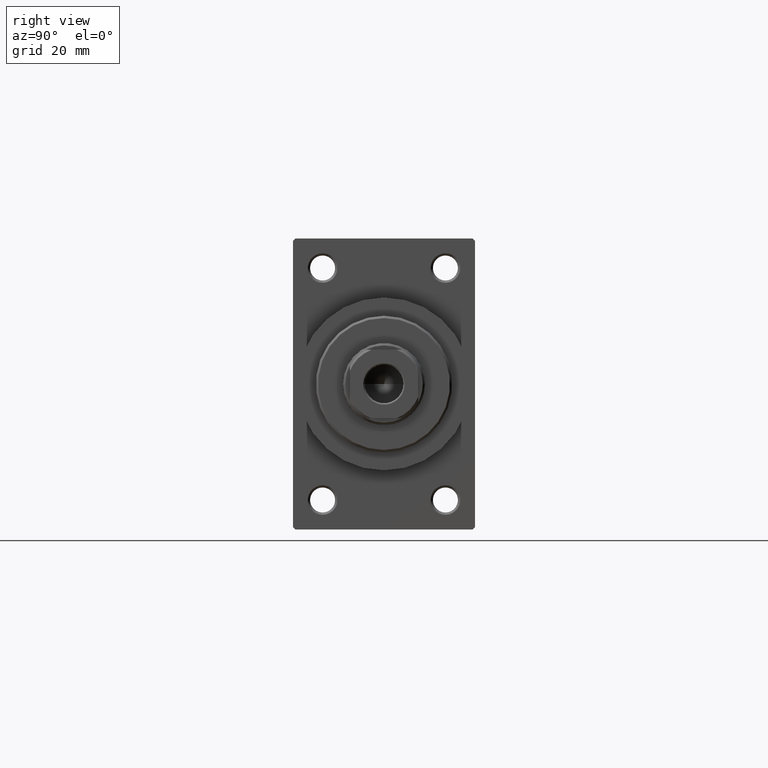
[diagram: clean part render]
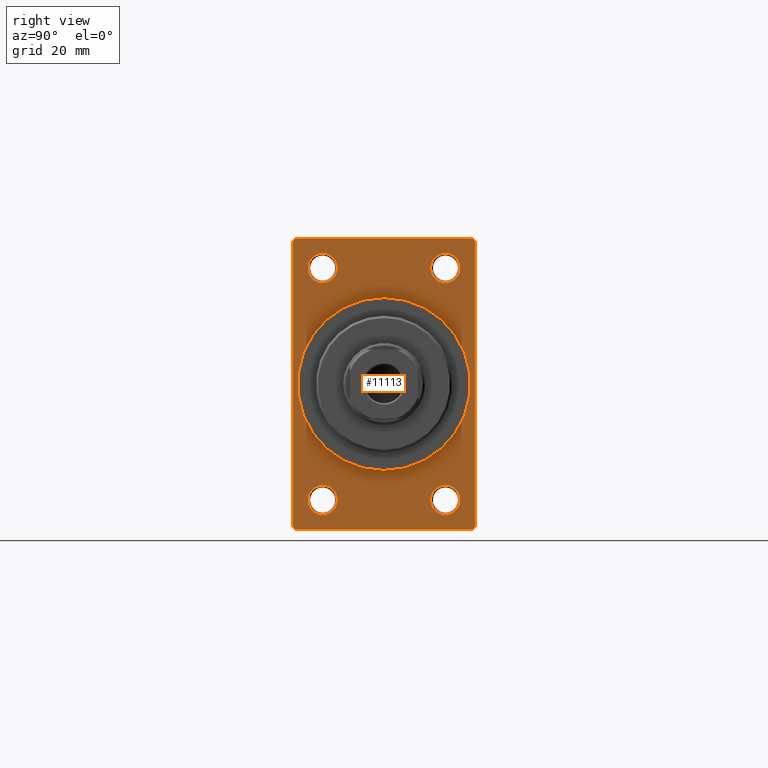
[diagram: same view with one face highlighted and labeled with its STEP entity id]
A machine part, right view. The second image highlights one B-rep face of the part: STEP entity #11113.
In plain terms, the highlighted planar face has unit normal (-1, 0, 0).
Its self-contained STEP definition (entity closure, byte-faithful):
#98 = LINE ( 'NONE', #39566, #30613 ) ;
#538 = VERTEX_POINT ( 'NONE', #13642 ) ;
#969 = CARTESIAN_POINT ( 'NONE',  ( 109.0000000000000142, 13.49999999999999822, -22.24999999999999645 ) ) ;
#1169 = CARTESIAN_POINT ( 'NONE',  ( 109.0000000000000142, 13.49999999999999822, 25.50000000000000355 ) ) ;
#1382 = DIRECTION ( 'NONE',  ( 0.000000000000000000, 0.000000000000000000, -1.000000000000000000 ) ) ;
#1940 = PLANE ( 'NONE',  #20705 ) ;
#2038 = ORIENTED_EDGE ( 'NONE', *, *, #18072, .T. ) ;
#2357 = CARTESIAN_POINT ( 'NONE',  ( 109.0000000000000142, -20.00000000000000000, 31.49999999999997868 ) ) ;
#2371 = VECTOR ( 'NONE', #37365, 1000.000000000000000 ) ;
#2410 = FACE_OUTER_BOUND ( 'NONE', #22496, .T. ) ;
#2972 = DIRECTION ( 'NONE',  ( 0.000000000000000000, -1.000000000000000000, 0.000000000000000000 ) ) ;
#3229 = VERTEX_POINT ( 'NONE', #27696 ) ;
#4065 = EDGE_CURVE ( 'NONE', #8723, #38779, #9492, .T. ) ;
#4791 = VERTEX_POINT ( 'NONE', #36240 ) ;
#5208 = CARTESIAN_POINT ( 'NONE',  ( 109.0000000000000142, 20.00000000000000000, -31.49999999999998579 ) ) ;
#5278 = ORIENTED_EDGE ( 'NONE', *, *, #15109, .T. ) ;
#5679 = CIRCLE ( 'NONE', #31543, 3.250000000000002665 ) ;
#5999 = AXIS2_PLACEMENT_3D ( 'NONE', #11514, #37421, #22473 ) ;
#6000 = DIRECTION ( 'NONE',  ( 0.000000000000000000, 0.000000000000000000, 1.000000000000000000 ) ) ;
#6415 = CIRCLE ( 'NONE', #9456, 3.250000000000002665 ) ;
#6525 = CIRCLE ( 'NONE', #30871, 19.00000000000000000 ) ;
#6787 = EDGE_CURVE ( 'NONE', #37873, #538, #7740, .T. ) ;
#7173 = EDGE_CURVE ( 'NONE', #4791, #35610, #24896, .T. ) ;
#7182 = EDGE_LOOP ( 'NONE', ( #32124, #5278 ) ) ;
#7265 = DIRECTION ( 'NONE',  ( -0.000000000000000000, 0.7071067811865474617, 0.7071067811865474617 ) ) ;
#7281 = AXIS2_PLACEMENT_3D ( 'NONE', #36384, #21661, #29034 ) ;
#7313 = ORIENTED_EDGE ( 'NONE', *, *, #42622, .T. ) ;
#7508 = LINE ( 'NONE', #25613, #39950 ) ;
#7740 = CIRCLE ( 'NONE', #38879, 3.250000000000002665 ) ;
#8345 = CARTESIAN_POINT ( 'NONE',  ( 109.0000000000000142, -19.49999999999998579, -32.00000000000000000 ) ) ;
#8447 = EDGE_CURVE ( 'NONE', #24353, #10087, #98, .T. ) ;
#8507 = LINE ( 'NONE', #9459, #26321 ) ;
#8723 = VERTEX_POINT ( 'NONE', #43794 ) ;
#9456 = AXIS2_PLACEMENT_3D ( 'NONE', #35253, #25013, #24556 ) ;
#9459 = CARTESIAN_POINT ( 'NONE',  ( 109.0000000000000142, 20.00000000000000000, 32.00000000000000000 ) ) ;
#9492 = LINE ( 'NONE', #38505, #25137 ) ;
#9616 = EDGE_LOOP ( 'NONE', ( #31921, #17076 ) ) ;
#9643 = CARTESIAN_POINT ( 'NONE',  ( 109.0000000000000142, -13.50000000000000178, 25.50000000000000355 ) ) ;
#9740 = VECTOR ( 'NONE', #30434, 1000.000000000000114 ) ;
#9970 = DIRECTION ( 'NONE',  ( 0.000000000000000000, 0.000000000000000000, -1.000000000000000000 ) ) ;
#10013 = FACE_BOUND ( 'NONE', #25030, .T. ) ;
#10087 = VERTEX_POINT ( 'NONE', #25454 ) ;
#10200 = ORIENTED_EDGE ( 'NONE', *, *, #26000, .F. ) ;
#10375 = CARTESIAN_POINT ( 'NONE',  ( 109.0000000000000142, 2.326828918379970970E-15, -19.00000000000000000 ) ) ;
#10418 = CARTESIAN_POINT ( 'NONE',  ( 109.0000000000000142, -19.49999999999998579, -32.00000000000000000 ) ) ;
#10563 = DIRECTION ( 'NONE',  ( 0.000000000000000000, 0.000000000000000000, -1.000000000000000000 ) ) ;
#10720 = CARTESIAN_POINT ( 'NONE',  ( 109.0000000000000142, 13.49999999999999822, -25.50000000000000000 ) ) ;
#10728 = VERTEX_POINT ( 'NONE', #31251 ) ;
#10861 = CARTESIAN_POINT ( 'NONE',  ( 109.0000000000000142, -13.50000000000000533, -22.24999999999999289 ) ) ;
#11113 = ADVANCED_FACE ( 'NONE', ( #38786, #28097, #42585, #10013, #20025, #2410 ), #1940, .F. ) ;
#11218 = CARTESIAN_POINT ( 'NONE',  ( 109.0000000000000142, -20.00000000000000000, -31.49999999999997868 ) ) ;
#11514 = CARTESIAN_POINT ( 'NONE',  ( 109.0000000000000142, -13.50000000000000178, 25.50000000000000355 ) ) ;
#12371 = VERTEX_POINT ( 'NONE', #25430 ) ;
#13642 = CARTESIAN_POINT ( 'NONE',  ( 109.0000000000000142, 13.49999999999999822, -28.75000000000000000 ) ) ;
#13848 = AXIS2_PLACEMENT_3D ( 'NONE', #39427, #29456, #14245 ) ;
#14183 = EDGE_CURVE ( 'NONE', #20696, #42582, #5679, .T. ) ;
#14245 = DIRECTION ( 'NONE',  ( 0.000000000000000000, 0.000000000000000000, 1.000000000000000000 ) ) ;
#14537 = DIRECTION ( 'NONE',  ( -1.000000000000000000, -0.000000000000000000, -0.000000000000000000 ) ) ;
#14621 = DIRECTION ( 'NONE',  ( 0.000000000000000000, -0.7071067811865474617, 0.7071067811865474617 ) ) ;
#15109 = EDGE_CURVE ( 'NONE', #3229, #12371, #22784, .T. ) ;
#15141 = DIRECTION ( 'NONE',  ( 0.000000000000000000, -1.000000000000000000, -1.734723475976807094E-16 ) ) ;
#15766 = CIRCLE ( 'NONE', #35417, 3.249999999999961364 ) ;
#15887 = VERTEX_POINT ( 'NONE', #10375 ) ;
#15925 = ORIENTED_EDGE ( 'NONE', *, *, #18111, .T. ) ;
#16159 = DIRECTION ( 'NONE',  ( -1.000000000000000000, -0.000000000000000000, -0.000000000000000000 ) ) ;
#16453 = CARTESIAN_POINT ( 'NONE',  ( 109.0000000000000142, 0.000000000000000000, 0.000000000000000000 ) ) ;
#16951 = ORIENTED_EDGE ( 'NONE', *, *, #23237, .T. ) ;
#17076 = ORIENTED_EDGE ( 'NONE', *, *, #42083, .T. ) ;
#17635 = CARTESIAN_POINT ( 'NONE',  ( 109.0000000000000142, 20.00000000000000000, 31.49999999999998579 ) ) ;
#17696 = CARTESIAN_POINT ( 'NONE',  ( 109.0000000000000142, -13.50000000000000533, -28.74999999999999645 ) ) ;
#17935 = EDGE_CURVE ( 'NONE', #10728, #15887, #6525, .T. ) ;
#18072 = EDGE_CURVE ( 'NONE', #26193, #32357, #43756, .T. ) ;
#18111 = EDGE_CURVE ( 'NONE', #32357, #26193, #15766, .T. ) ;
#19295 = VERTEX_POINT ( 'NONE', #10418 ) ;
#19716 = ORIENTED_EDGE ( 'NONE', *, *, #43322, .F. ) ;
#19829 = CARTESIAN_POINT ( 'NONE',  ( 109.0000000000000142, -13.50000000000000533, -25.49999999999999645 ) ) ;
#20025 = FACE_BOUND ( 'NONE', #41407, .T. ) ;
#20105 = ORIENTED_EDGE ( 'NONE', *, *, #6787, .T. ) ;
#20696 = VERTEX_POINT ( 'NONE', #17696 ) ;
#20705 = AXIS2_PLACEMENT_3D ( 'NONE', #16453, #32780, #29215 ) ;
#20812 = ORIENTED_EDGE ( 'NONE', *, *, #7173, .T. ) ;
#21661 = DIRECTION ( 'NONE',  ( -1.000000000000000000, -0.000000000000000000, -0.000000000000000000 ) ) ;
#21726 = CARTESIAN_POINT ( 'NONE',  ( 109.0000000000000142, -19.49999999999998579, 31.99999999999999289 ) ) ;
#21908 = DIRECTION ( 'NONE',  ( 0.000000000000000000, 0.000000000000000000, 1.000000000000000000 ) ) ;
#22347 = DIRECTION ( 'NONE',  ( 0.000000000000000000, 0.000000000000000000, -1.000000000000000000 ) ) ;
#22473 = DIRECTION ( 'NONE',  ( 0.000000000000000000, 0.000000000000000000, 1.000000000000000000 ) ) ;
#22496 = EDGE_LOOP ( 'NONE', ( #31752, #26072, #35382, #20812, #19716, #25308, #7313, #16951 ) ) ;
#22781 = CIRCLE ( 'NONE', #28863, 19.00000000000000000 ) ;
#22784 = CIRCLE ( 'NONE', #5999, 3.250000000000002665 ) ;
#23237 = EDGE_CURVE ( 'NONE', #34938, #8723, #44936, .T. ) ;
#23755 = CARTESIAN_POINT ( 'NONE',  ( 109.0000000000000142, 13.49999999999999822, 28.74999999999996803 ) ) ;
#24165 = DIRECTION ( 'NONE',  ( 0.000000000000000000, 0.000000000000000000, 1.000000000000000000 ) ) ;
#24353 = VERTEX_POINT ( 'NONE', #17635 ) ;
#24397 = DIRECTION ( 'NONE',  ( -1.000000000000000000, -0.000000000000000000, -0.000000000000000000 ) ) ;
#24420 = AXIS2_PLACEMENT_3D ( 'NONE', #9643, #24397, #24165 ) ;
#24556 = DIRECTION ( 'NONE',  ( 0.000000000000000000, 0.000000000000000000, 1.000000000000000000 ) ) ;
#24896 = LINE ( 'NONE', #39376, #37374 ) ;
#25013 = DIRECTION ( 'NONE',  ( -1.000000000000000000, -0.000000000000000000, -0.000000000000000000 ) ) ;
#25030 = EDGE_LOOP ( 'NONE', ( #2038, #15925 ) ) ;
#25137 = VECTOR ( 'NONE', #9970, 1000.000000000000000 ) ;
#25308 = ORIENTED_EDGE ( 'NONE', *, *, #8447, .T. ) ;
#25430 = CARTESIAN_POINT ( 'NONE',  ( 109.0000000000000142, -13.50000000000000178, 22.25000000000000000 ) ) ;
#25454 = CARTESIAN_POINT ( 'NONE',  ( 109.0000000000000142, 19.49999999999998579, 32.00000000000000000 ) ) ;
#25613 = CARTESIAN_POINT ( 'NONE',  ( 109.0000000000000142, 20.00000000000000000, 32.00000000000000000 ) ) ;
#26000 = EDGE_CURVE ( 'NONE', #15887, #10728, #22781, .T. ) ;
#26072 = ORIENTED_EDGE ( 'NONE', *, *, #34102, .T. ) ;
#26193 = VERTEX_POINT ( 'NONE', #45490 ) ;
#26321 = VECTOR ( 'NONE', #1382, 1000.000000000000000 ) ;
#26600 = DIRECTION ( 'NONE',  ( 1.000000000000000000, 0.000000000000000000, 0.000000000000000000 ) ) ;
#27696 = CARTESIAN_POINT ( 'NONE',  ( 109.0000000000000142, -13.50000000000000178, 28.75000000000000355 ) ) ;
#28097 = FACE_BOUND ( 'NONE', #9616, .T. ) ;
#28254 = ORIENTED_EDGE ( 'NONE', *, *, #35775, .T. ) ;
#28283 = CIRCLE ( 'NONE', #13848, 3.250000000000002665 ) ;
#28863 = AXIS2_PLACEMENT_3D ( 'NONE', #35549, #46251, #10563 ) ;
#29034 = DIRECTION ( 'NONE',  ( 0.000000000000000000, 0.000000000000000000, 1.000000000000000000 ) ) ;
#29215 = DIRECTION ( 'NONE',  ( -0.000000000000000000, 0.000000000000000000, 1.000000000000000000 ) ) ;
#29451 = EDGE_CURVE ( 'NONE', #12371, #3229, #36522, .T. ) ;
#29456 = DIRECTION ( 'NONE',  ( -1.000000000000000000, -0.000000000000000000, -0.000000000000000000 ) ) ;
#30434 = DIRECTION ( 'NONE',  ( -0.000000000000000000, -0.7071067811865474617, -0.7071067811865474617 ) ) ;
#30613 = VECTOR ( 'NONE', #14621, 1000.000000000000114 ) ;
#30871 = AXIS2_PLACEMENT_3D ( 'NONE', #44209, #26600, #22347 ) ;
#31251 = CARTESIAN_POINT ( 'NONE',  ( 109.0000000000000142, 0.000000000000000000, 19.00000000000000000 ) ) ;
#31543 = AXIS2_PLACEMENT_3D ( 'NONE', #19829, #41921, #6000 ) ;
#31752 = ORIENTED_EDGE ( 'NONE', *, *, #4065, .T. ) ;
#31921 = ORIENTED_EDGE ( 'NONE', *, *, #14183, .T. ) ;
#32124 = ORIENTED_EDGE ( 'NONE', *, *, #29451, .T. ) ;
#32349 = ORIENTED_EDGE ( 'NONE', *, *, #17935, .F. ) ;
#32357 = VERTEX_POINT ( 'NONE', #23755 ) ;
#32780 = DIRECTION ( 'NONE',  ( -1.000000000000000000, 0.000000000000000000, -0.000000000000000000 ) ) ;
#34102 = EDGE_CURVE ( 'NONE', #38779, #19295, #45692, .T. ) ;
#34938 = VERTEX_POINT ( 'NONE', #21726 ) ;
#35253 = CARTESIAN_POINT ( 'NONE',  ( 109.0000000000000142, -13.50000000000000533, -25.49999999999999645 ) ) ;
#35382 = ORIENTED_EDGE ( 'NONE', *, *, #44495, .F. ) ;
#35417 = AXIS2_PLACEMENT_3D ( 'NONE', #1169, #16159, #44460 ) ;
#35549 = CARTESIAN_POINT ( 'NONE',  ( 109.0000000000000142, 0.000000000000000000, 0.000000000000000000 ) ) ;
#35610 = VERTEX_POINT ( 'NONE', #5208 ) ;
#35775 = EDGE_CURVE ( 'NONE', #538, #37873, #28283, .T. ) ;
#36240 = CARTESIAN_POINT ( 'NONE',  ( 109.0000000000000142, 19.49999999999998579, -32.00000000000000000 ) ) ;
#36384 = CARTESIAN_POINT ( 'NONE',  ( 109.0000000000000142, 13.49999999999999822, 25.50000000000000355 ) ) ;
#36522 = CIRCLE ( 'NONE', #24420, 3.250000000000002665 ) ;
#37365 = DIRECTION ( 'NONE',  ( 0.000000000000000000, 0.7071067811865426878, -0.7071067811865524577 ) ) ;
#37374 = VECTOR ( 'NONE', #7265, 1000.000000000000114 ) ;
#37421 = DIRECTION ( 'NONE',  ( -1.000000000000000000, -0.000000000000000000, -0.000000000000000000 ) ) ;
#37873 = VERTEX_POINT ( 'NONE', #969 ) ;
#38505 = CARTESIAN_POINT ( 'NONE',  ( 109.0000000000000142, -20.00000000000000000, 31.99999999999999289 ) ) ;
#38779 = VERTEX_POINT ( 'NONE', #11218 ) ;
#38786 = FACE_BOUND ( 'NONE', #7182, .T. ) ;
#38879 = AXIS2_PLACEMENT_3D ( 'NONE', #10720, #14537, #21908 ) ;
#39348 = LINE ( 'NONE', #42222, #46690 ) ;
#39376 = CARTESIAN_POINT ( 'NONE',  ( 109.0000000000000142, 20.00000000000000000, -31.49999999999998579 ) ) ;
#39427 = CARTESIAN_POINT ( 'NONE',  ( 109.0000000000000142, 13.49999999999999822, -25.50000000000000000 ) ) ;
#39566 = CARTESIAN_POINT ( 'NONE',  ( 109.0000000000000142, 19.49999999999998579, 32.00000000000000000 ) ) ;
#39950 = VECTOR ( 'NONE', #15141, 1000.000000000000000 ) ;
#41407 = EDGE_LOOP ( 'NONE', ( #32349, #10200 ) ) ;
#41921 = DIRECTION ( 'NONE',  ( -1.000000000000000000, -0.000000000000000000, -0.000000000000000000 ) ) ;
#42083 = EDGE_CURVE ( 'NONE', #42582, #20696, #6415, .T. ) ;
#42222 = CARTESIAN_POINT ( 'NONE',  ( 109.0000000000000142, 20.00000000000000000, -32.00000000000000000 ) ) ;
#42582 = VERTEX_POINT ( 'NONE', #10861 ) ;
#42585 = FACE_BOUND ( 'NONE', #43330, .T. ) ;
#42622 = EDGE_CURVE ( 'NONE', #10087, #34938, #7508, .T. ) ;
#43322 = EDGE_CURVE ( 'NONE', #24353, #35610, #8507, .T. ) ;
#43330 = EDGE_LOOP ( 'NONE', ( #28254, #20105 ) ) ;
#43756 = CIRCLE ( 'NONE', #7281, 3.249999999999961364 ) ;
#43794 = CARTESIAN_POINT ( 'NONE',  ( 109.0000000000000142, -20.00000000000000000, 31.49999999999997868 ) ) ;
#44209 = CARTESIAN_POINT ( 'NONE',  ( 109.0000000000000142, 0.000000000000000000, 0.000000000000000000 ) ) ;
#44460 = DIRECTION ( 'NONE',  ( 0.000000000000000000, 0.000000000000000000, 1.000000000000000000 ) ) ;
#44495 = EDGE_CURVE ( 'NONE', #4791, #19295, #39348, .T. ) ;
#44936 = LINE ( 'NONE', #2357, #9740 ) ;
#45490 = CARTESIAN_POINT ( 'NONE',  ( 109.0000000000000142, 13.49999999999999822, 22.25000000000004263 ) ) ;
#45692 = LINE ( 'NONE', #8345, #2371 ) ;
#46251 = DIRECTION ( 'NONE',  ( 1.000000000000000000, 0.000000000000000000, 0.000000000000000000 ) ) ;
#46690 = VECTOR ( 'NONE', #2972, 1000.000000000000000 ) ;